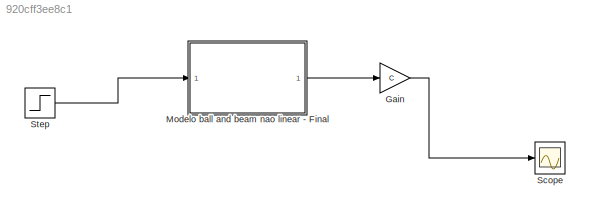
MODEL slx_920cff3ee8c1
KIND model
CONFIG AbsTol = auto
CONFIG EnableMultiTasking = off
CONFIG FixedStep = auto
CONFIG MaxStep = auto
CONFIG MinStep = auto
CONFIG RelTol = 1e-3
CONFIG SampleTimeConstraint = Unconstrained
CONFIG SolverName = VariableStepAuto
CONFIG StartTime = 0.0
CONFIG StopTime = 10.0
BLOCK [Gain] Gain
  Gain = C
  Multiplication = Matrix(K*u)
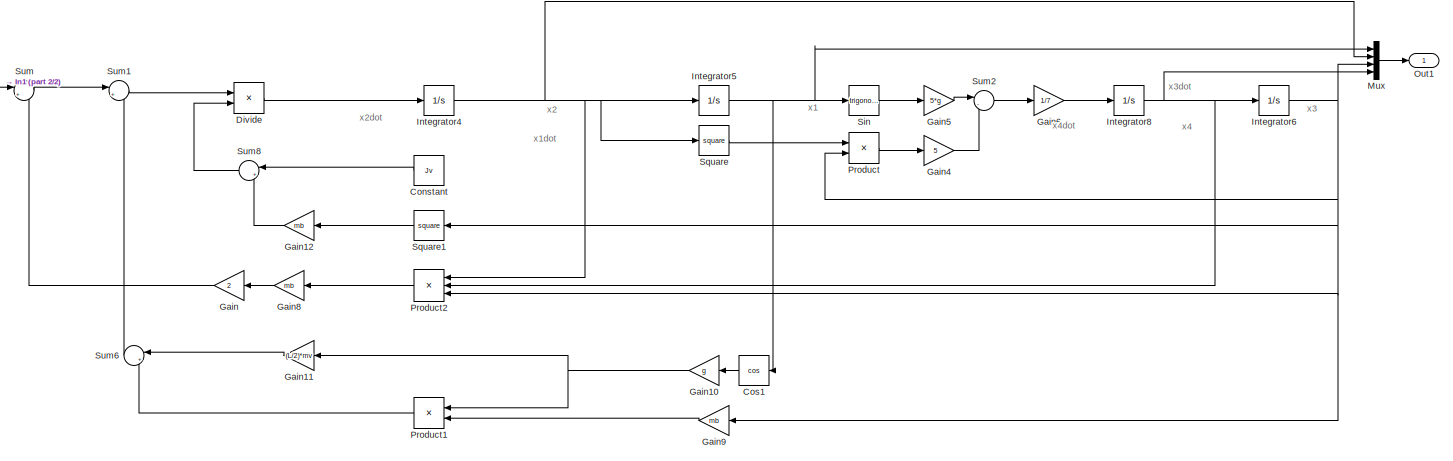
[diagram: Modelo ball and beam nao linear - Final - part 1/2, most of the canvas]
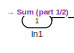
[diagram: Modelo ball and beam nao linear - Final - part 2/2, top left region]
BLOCK [SubSystem] Modelo ball and beam nao linear - Final
  Ports = [1, 1]
  RequestExecContextInheritance = off
BLOCK [Constant] Modelo ball and beam nao linear - Final/Constant
  NameLocation = top
  Value = Jv
BLOCK [Trigonometry] Modelo ball and beam nao linear - Final/Cos1
  NameLocation = top
  Operator = cos
  Ports = [1, 1]
BLOCK [Product] Modelo ball and beam nao linear - Final/Divide
  Inputs = */
  Ports = [2, 1]
BLOCK [Gain] Modelo ball and beam nao linear - Final/Gain
  Gain = 2
  NameLocation = top
BLOCK [Gain] Modelo ball and beam nao linear - Final/Gain10
  Gain = g
  NameLocation = top
BLOCK [Gain] Modelo ball and beam nao linear - Final/Gain11
  Gain = (L/2)*mv
  NameLocation = top
BLOCK [Gain] Modelo ball and beam nao linear - Final/Gain12
  Gain = mb
  NameLocation = top
BLOCK [Gain] Modelo ball and beam nao linear - Final/Gain4
  Gain = 5
BLOCK [Gain] Modelo ball and beam nao linear - Final/Gain5
  Gain = 5*g
BLOCK [Gain] Modelo ball and beam nao linear - Final/Gain6
  Gain = 1/7
BLOCK [Gain] Modelo ball and beam nao linear - Final/Gain8
  Gain = mb
  NameLocation = top
BLOCK [Gain] Modelo ball and beam nao linear - Final/Gain9
  Gain = mb
  NameLocation = top
BLOCK [Inport] Modelo ball and beam nao linear - Final/In1
BLOCK [Integrator] Modelo ball and beam nao linear - Final/Integrator4
  Ports = [1, 1]
BLOCK [Integrator] Modelo ball and beam nao linear - Final/Integrator5
  Ports = [1, 1]
BLOCK [Integrator] Modelo ball and beam nao linear - Final/Integrator6
  Ports = [1, 1]
BLOCK [Integrator] Modelo ball and beam nao linear - Final/Integrator8
  Ports = [1, 1]
BLOCK [Mux] Modelo ball and beam nao linear - Final/Mux
  DisplayOption = bar
  Ports = [4, 1]
BLOCK [Outport] Modelo ball and beam nao linear - Final/Out1
BLOCK [Product] Modelo ball and beam nao linear - Final/Product
  Ports = [2, 1]
BLOCK [Product] Modelo ball and beam nao linear - Final/Product1
  NameLocation = top
  Ports = [2, 1]
BLOCK [Product] Modelo ball and beam nao linear - Final/Product2
  Inputs = 3
  NameLocation = top
  Ports = [3, 1]
BLOCK [Trigonometry] Modelo ball and beam nao linear - Final/Sin
  Ports = [1, 1]
BLOCK [Math] Modelo ball and beam nao linear - Final/Square
  Operator = square
  Ports = [1, 1]
BLOCK [Math] Modelo ball and beam nao linear - Final/Square1
  NameLocation = top
  Operator = square
  Ports = [1, 1]
BLOCK [Sum] Modelo ball and beam nao linear - Final/Sum
  Inputs = |+-
  Ports = [2, 1]
BLOCK [Sum] Modelo ball and beam nao linear - Final/Sum1
  Inputs = |+-
  Ports = [2, 1]
BLOCK [Sum] Modelo ball and beam nao linear - Final/Sum2
  Inputs = |-+
  NameLocation = top
  Ports = [2, 1]
BLOCK [Sum] Modelo ball and beam nao linear - Final/Sum6
  Inputs = |++
  NameLocation = top
  Ports = [2, 1]
BLOCK [Sum] Modelo ball and beam nao linear - Final/Sum8
  Inputs = |++
  NameLocation = top
  Ports = [2, 1]
BLOCK [Scope] Scope
  Floating = off
  NumInputPorts = 1
  Ports = [1]
  ScopeSpecificationString = Simulink.scopes.TimeScopeBlockCfg('CurrentConfiguration', extmgr.ConfigurationSet(extmgr.Configuration('Core','General UI',true),extmgr.Configuration('Core','Source UI',true),extmgr.Configuration('Sources','WiredSimulink',true),extmgr.Configuration('Visuals','Time Domain',true),extmgr.Configuration('Tools','Plot Navigation',true),extmgr.Configuration('Tools','Measurements',true)),'Version','2022a'...<+1ch>
BLOCK [Step] Step
  SampleTime = 0
ANNOTATION Modelo ball and beam nao linear - Final: x1
ANNOTATION Modelo ball and beam nao linear - Final: x1dot
ANNOTATION Modelo ball and beam nao linear - Final: x2
ANNOTATION Modelo ball and beam nao linear - Final: x2dot
ANNOTATION Modelo ball and beam nao linear - Final: x3
ANNOTATION Modelo ball and beam nao linear - Final: x3dot
ANNOTATION Modelo ball and beam nao linear - Final: x4
ANNOTATION Modelo ball and beam nao linear - Final: x4dot
LINE Gain:1 -> Scope:1
LINE Modelo ball and beam nao linear - Final/Constant:1 -> Modelo ball and beam nao linear - Final/Sum8:1
LINE Modelo ball and beam nao linear - Final/Cos1:1 -> Modelo ball and beam nao linear - Final/Gain10:1
LINE Modelo ball and beam nao linear - Final/Divide:1 -> Modelo ball and beam nao linear - Final/Integrator4:1
NET Modelo ball and beam nao linear - Final/Gain10:1 -> Modelo ball and beam nao linear - Final/Gain11:1, Modelo ball and beam nao linear - Final/Product1:1
LINE Modelo ball and beam nao linear - Final/Gain11:1 -> Modelo ball and beam nao linear - Final/Sum6:1
LINE Modelo ball and beam nao linear - Final/Gain12:1 -> Modelo ball and beam nao linear - Final/Sum8:2
LINE Modelo ball and beam nao linear - Final/Gain4:1 -> Modelo ball and beam nao linear - Final/Sum2:2
LINE Modelo ball and beam nao linear - Final/Gain5:1 -> Modelo ball and beam nao linear - Final/Sum2:1
LINE Modelo ball and beam nao linear - Final/Gain6:1 -> Modelo ball and beam nao linear - Final/Integrator8:1
LINE Modelo ball and beam nao linear - Final/Gain8:1 -> Modelo ball and beam nao linear - Final/Gain:1
LINE Modelo ball and beam nao linear - Final/Gain9:1 -> Modelo ball and beam nao linear - Final/Product1:2
LINE Modelo ball and beam nao linear - Final/Gain:1 -> Modelo ball and beam nao linear - Final/Sum:2
LINE Modelo ball and beam nao linear - Final/In1:1 -> Modelo ball and beam nao linear - Final/Sum:1
NET Modelo ball and beam nao linear - Final/Integrator4:1 -> Modelo ball and beam nao linear - Final/Integrator5:1, Modelo ball and beam nao linear - Final/Mux:2, Modelo ball and beam nao linear - Final/Product2:1, Modelo ball and beam nao linear - Final/Square:1
NET Modelo ball and beam nao linear - Final/Integrator5:1 -> Modelo ball and beam nao linear - Final/Cos1:1, Modelo ball and beam nao linear - Final/Mux:1, Modelo ball and beam nao linear - Final/Sin:1
NET Modelo ball and beam nao linear - Final/Integrator6:1 -> Modelo ball and beam nao linear - Final/Gain9:1, Modelo ball and beam nao linear - Final/Mux:3, Modelo ball and beam nao linear - Final/Product2:3, Modelo ball and beam nao linear - Final/Product:2, Modelo ball and beam nao linear - Final/Square1:1
NET Modelo ball and beam nao linear - Final/Integrator8:1 -> Modelo ball and beam nao linear - Final/Integrator6:1, Modelo ball and beam nao linear - Final/Mux:4, Modelo ball and beam nao linear - Final/Product2:2
LINE Modelo ball and beam nao linear - Final/Mux:1 -> Modelo ball and beam nao linear - Final/Out1:1
LINE Modelo ball and beam nao linear - Final/Product1:1 -> Modelo ball and beam nao linear - Final/Sum6:2
LINE Modelo ball and beam nao linear - Final/Product2:1 -> Modelo ball and beam nao linear - Final/Gain8:1
LINE Modelo ball and beam nao linear - Final/Product:1 -> Modelo ball and beam nao linear - Final/Gain4:1
LINE Modelo ball and beam nao linear - Final/Sin:1 -> Modelo ball and beam nao linear - Final/Gain5:1
LINE Modelo ball and beam nao linear - Final/Square1:1 -> Modelo ball and beam nao linear - Final/Gain12:1
LINE Modelo ball and beam nao linear - Final/Square:1 -> Modelo ball and beam nao linear - Final/Product:1
LINE Modelo ball and beam nao linear - Final/Sum1:1 -> Modelo ball and beam nao linear - Final/Divide:1
LINE Modelo ball and beam nao linear - Final/Sum2:1 -> Modelo ball and beam nao linear - Final/Gain6:1
LINE Modelo ball and beam nao linear - Final/Sum6:1 -> Modelo ball and beam nao linear - Final/Sum1:2
LINE Modelo ball and beam nao linear - Final/Sum8:1 -> Modelo ball and beam nao linear - Final/Divide:2
LINE Modelo ball and beam nao linear - Final/Sum:1 -> Modelo ball and beam nao linear - Final/Sum1:1
LINE Modelo ball and beam nao linear - Final:1 -> Gain:1
LINE Step:1 -> Modelo ball and beam nao linear - Final:1
note: NET lines group one-source signal fan-out (src -> all destinations, sorted); 1:1 wires keep LINE
